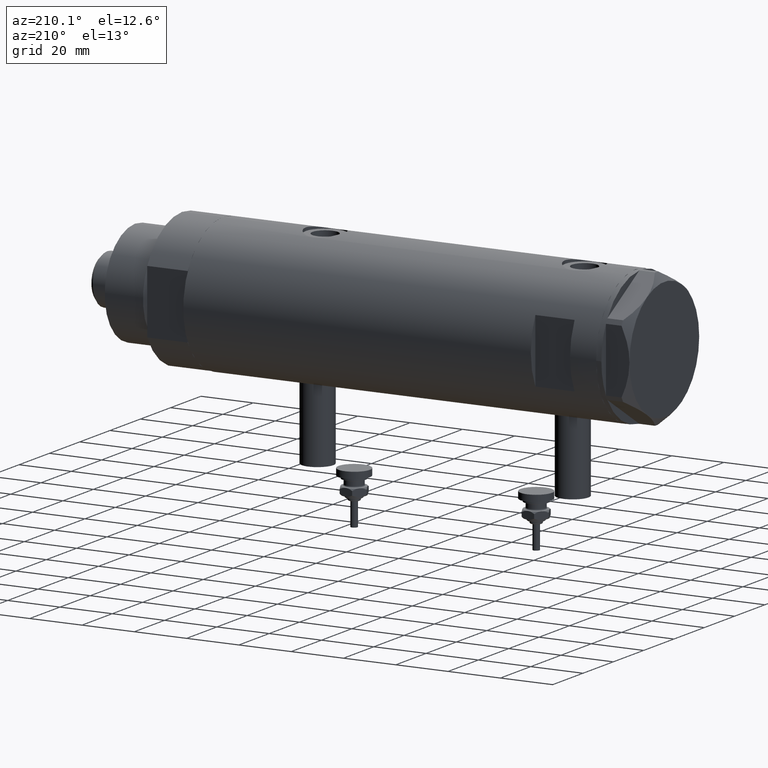
[diagram: clean part render]
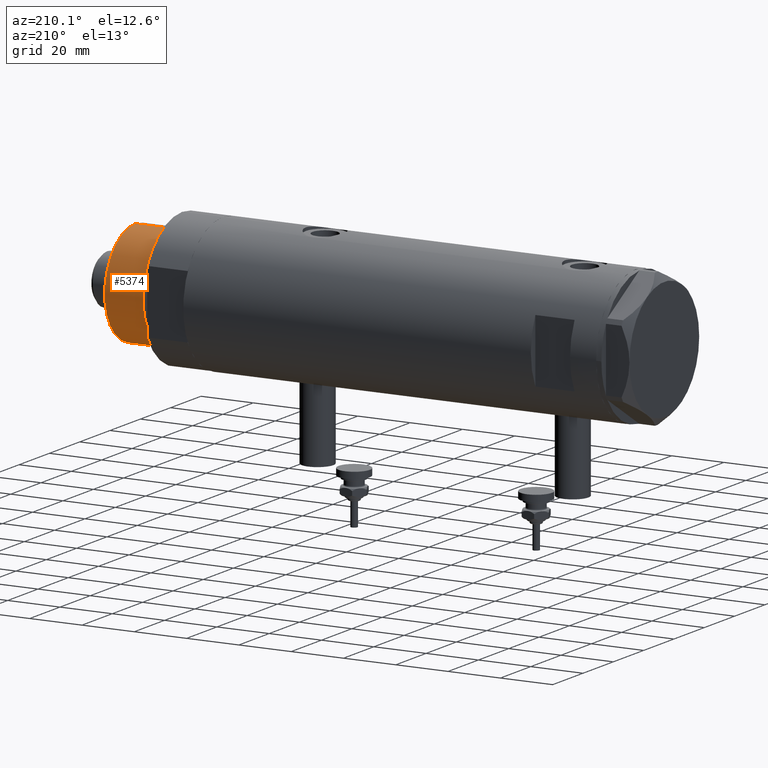
[diagram: same view with one face highlighted and labeled with its STEP entity id]
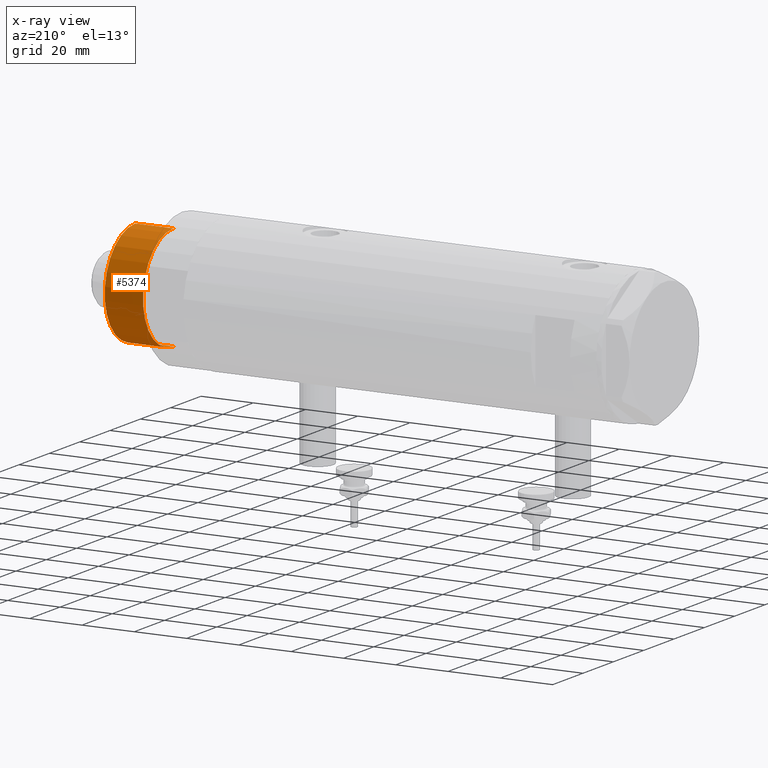
[diagram: x-ray of the same camera — body ghosted, the highlighted face saturated]
A machine part, auxiliary view. The second image highlights one B-rep face of the part: STEP entity #5374.
The next image is the same camera in x-ray: the body ghosted, the highlighted face saturated — about 0% of this face is hidden behind the body in this view.
In plain terms, the highlighted cylindrical surface (partial cylindrical patch) has radius 20 mm, axis along (-1, -0, 0).
Its self-contained STEP definition (entity closure, byte-faithful):
#16 = DIRECTION ( 'NONE',  ( -0.000000000000000000, -0.000000000000000000, -1.000000000000000000 ) ) ;
#116 = DIRECTION ( 'NONE',  ( -0.000000000000000000, -0.000000000000000000, -1.000000000000000000 ) ) ;
#249 = LINE ( 'NONE', #6097, #3762 ) ;
#719 = EDGE_CURVE ( 'NONE', #4506, #4240, #249, .T. ) ;
#954 = AXIS2_PLACEMENT_3D ( 'NONE', #5449, #16, #4971 ) ;
#1163 = EDGE_LOOP ( 'NONE', ( #1768, #2824, #3770, #3779 ) ) ;
#1529 = VERTEX_POINT ( 'NONE', #2519 ) ;
#1664 = EDGE_CURVE ( 'NONE', #4104, #4240, #2976, .T. ) ;
#1768 = ORIENTED_EDGE ( 'NONE', *, *, #5366, .F. ) ;
#1800 = LINE ( 'NONE', #5737, #2037 ) ;
#2037 = VECTOR ( 'NONE', #4170, 1000.000000000000000 ) ;
#2519 = CARTESIAN_POINT ( 'NONE',  ( 19.99999999999999645, 2.449293598294706119E-15, 33.50000000000000000 ) ) ;
#2626 = CARTESIAN_POINT ( 'NONE',  ( -19.99999999999999645, 0.000000000000000000, 33.50000000000000000 ) ) ;
#2634 = EDGE_CURVE ( 'NONE', #1529, #4104, #1800, .T. ) ;
#2824 = ORIENTED_EDGE ( 'NONE', *, *, #2634, .T. ) ;
#2976 = CIRCLE ( 'NONE', #5333, 19.99999999999999645 ) ;
#3512 = DIRECTION ( 'NONE',  ( 1.000000000000000000, 0.000000000000000000, 0.000000000000000000 ) ) ;
#3762 = VECTOR ( 'NONE', #116, 1000.000000000000000 ) ;
#3770 = ORIENTED_EDGE ( 'NONE', *, *, #1664, .T. ) ;
#3779 = ORIENTED_EDGE ( 'NONE', *, *, #719, .F. ) ;
#3899 = CARTESIAN_POINT ( 'NONE',  ( -19.99999999999999645, 0.000000000000000000, 18.87384048104053846 ) ) ;
#3960 = CYLINDRICAL_SURFACE ( 'NONE', #954, 19.99999999999999645 ) ;
#4104 = VERTEX_POINT ( 'NONE', #4269 ) ;
#4170 = DIRECTION ( 'NONE',  ( -0.000000000000000000, -0.000000000000000000, -1.000000000000000000 ) ) ;
#4240 = VERTEX_POINT ( 'NONE', #3899 ) ;
#4269 = CARTESIAN_POINT ( 'NONE',  ( 19.99999999999999645, 2.449293598294706119E-15, 18.87384048104053846 ) ) ;
#4391 = CIRCLE ( 'NONE', #4701, 19.99999999999999645 ) ;
#4506 = VERTEX_POINT ( 'NONE', #2626 ) ;
#4615 = CARTESIAN_POINT ( 'NONE',  ( 0.000000000000000000, 0.000000000000000000, 33.50000000000000000 ) ) ;
#4701 = AXIS2_PLACEMENT_3D ( 'NONE', #4615, #5411, #3512 ) ;
#4774 = CARTESIAN_POINT ( 'NONE',  ( 0.000000000000000000, 0.000000000000000000, 18.87384048104053846 ) ) ;
#4946 = FACE_OUTER_BOUND ( 'NONE', #1163, .T. ) ;
#4971 = DIRECTION ( 'NONE',  ( -1.000000000000000000, 0.000000000000000000, 0.000000000000000000 ) ) ;
#5333 = AXIS2_PLACEMENT_3D ( 'NONE', #4774, #6295, #6197 ) ;
#5366 = EDGE_CURVE ( 'NONE', #1529, #4506, #4391, .T. ) ;
#5374 = ADVANCED_FACE ( 'NONE', ( #4946 ), #3960, .T. ) ;
#5411 = DIRECTION ( 'NONE',  ( 0.000000000000000000, 0.000000000000000000, 1.000000000000000000 ) ) ;
#5449 = CARTESIAN_POINT ( 'NONE',  ( 0.000000000000000000, 0.000000000000000000, 33.50000000000000000 ) ) ;
#5737 = CARTESIAN_POINT ( 'NONE',  ( 19.99999999999999645, 2.449293598294706119E-15, 33.50000000000000000 ) ) ;
#6097 = CARTESIAN_POINT ( 'NONE',  ( -19.99999999999999645, 0.000000000000000000, 33.50000000000000000 ) ) ;
#6197 = DIRECTION ( 'NONE',  ( 1.000000000000000000, 0.000000000000000000, 0.000000000000000000 ) ) ;
#6295 = DIRECTION ( 'NONE',  ( -0.000000000000000000, -0.000000000000000000, 1.000000000000000000 ) ) ;